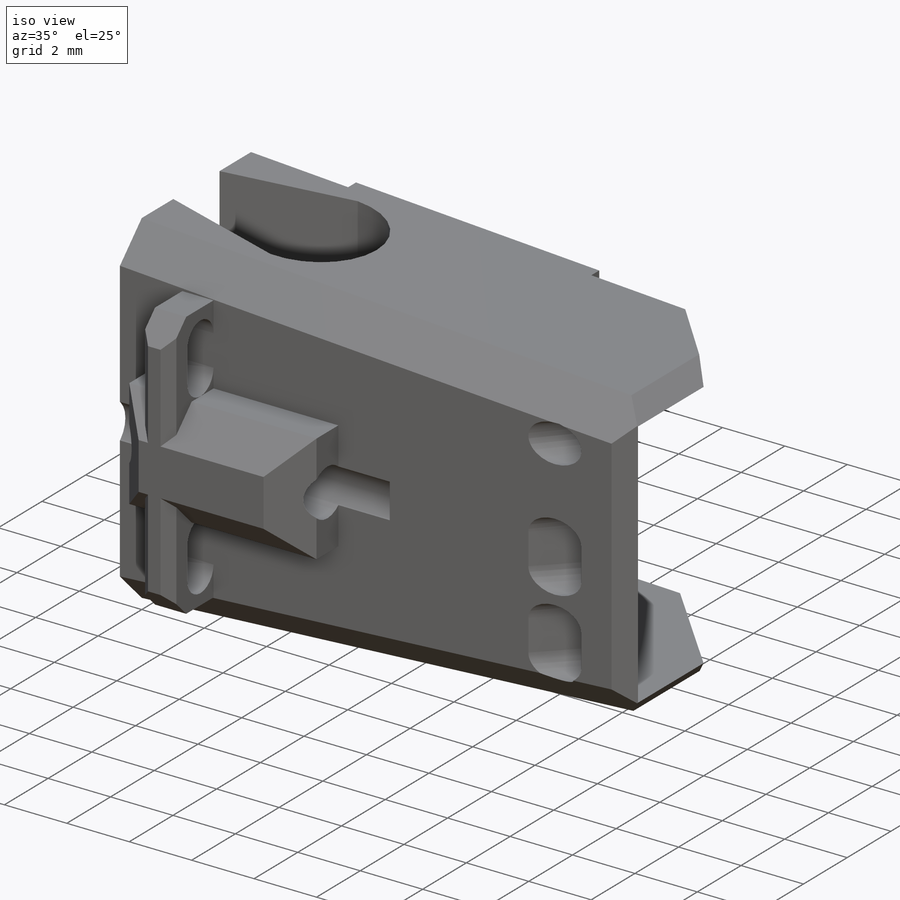
[diagram: iso view]
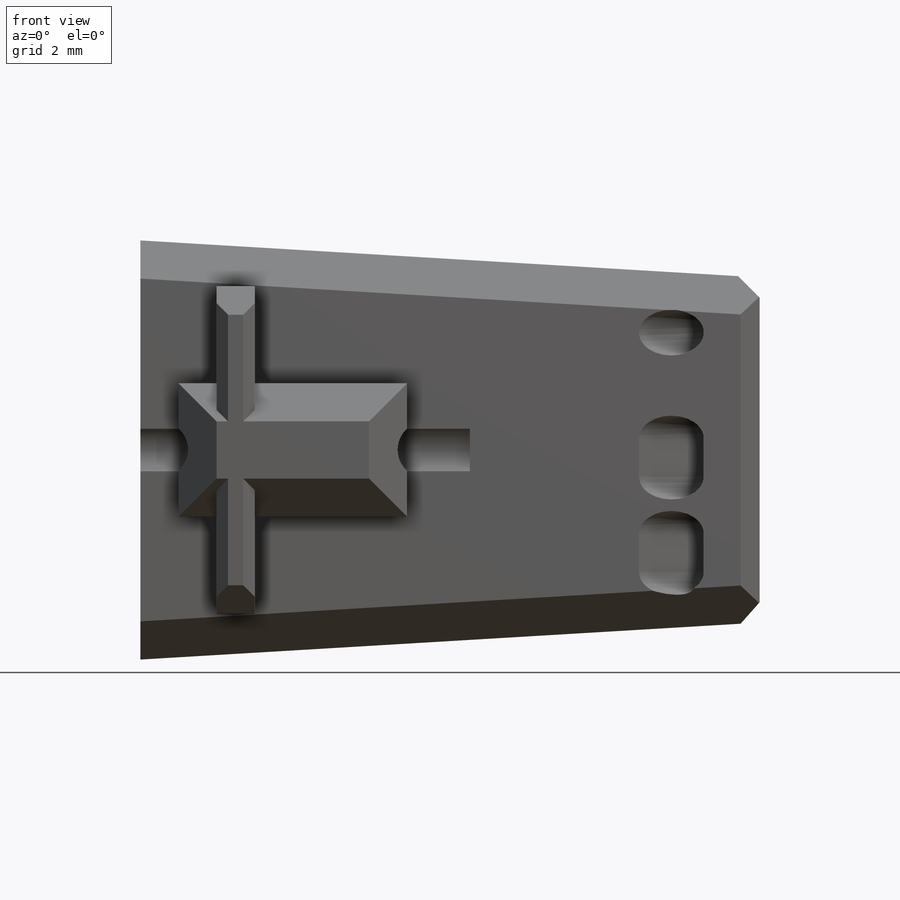
[diagram: front view]
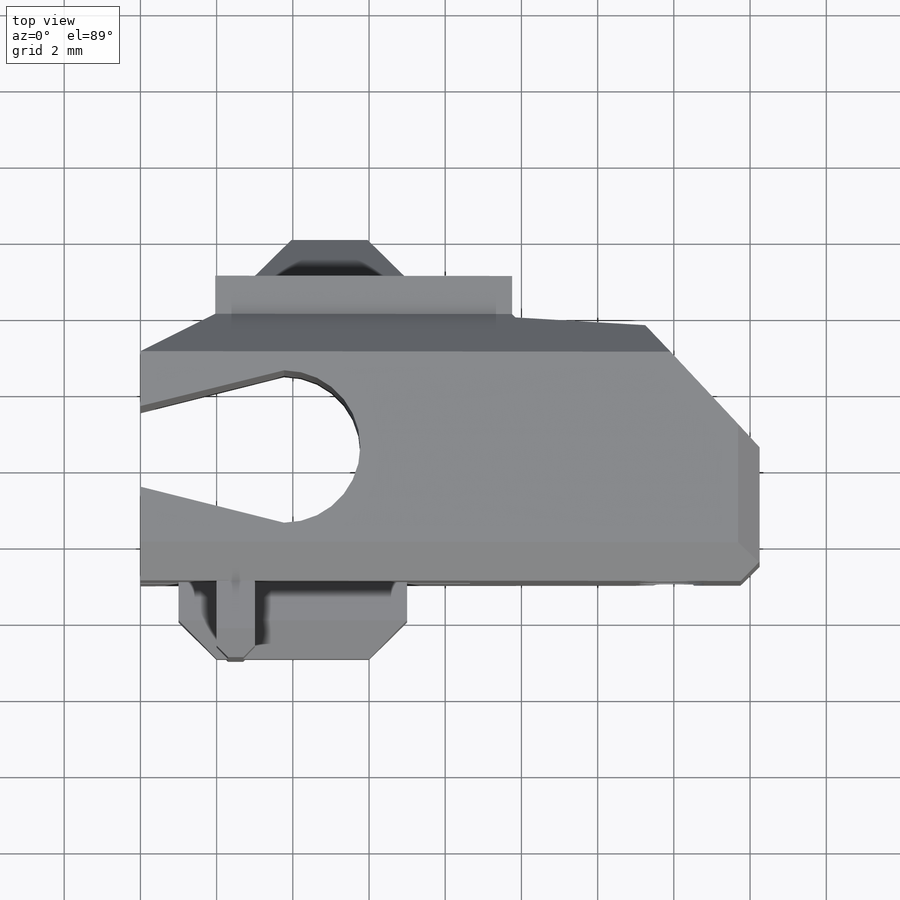
[diagram: top view]
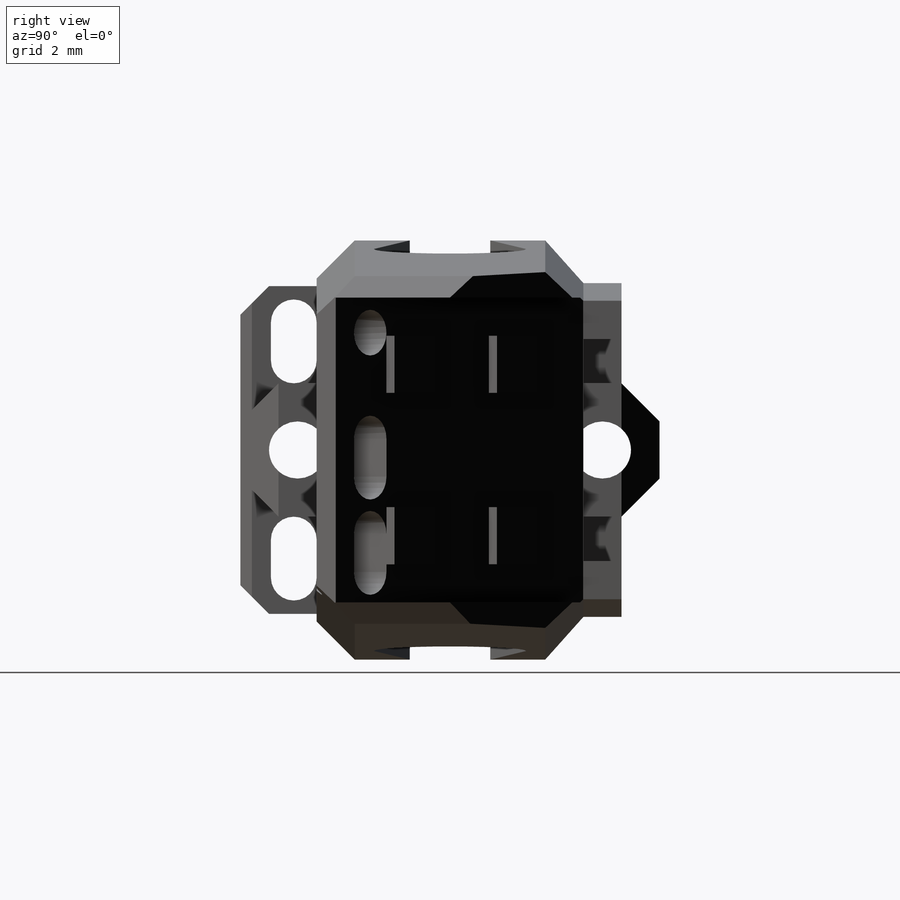
[diagram: right view]
SOLIDWORKS PART (.sldprt)
format: sldprt  version: not decoded by parser v0  size: 611,328 bytes
history: native  units: mm
features: sketch x14, cut_extrude x8, chamfer x7, extrude x6, plane x2, material x1 (+13 scaffold rows collapsed)
feature tree (51):
  scaffold x13  (default folders/planes/origin — collapsed)
  material  "Material <not specified>"
  sketch  "Sketch2"  dims[D1=9.0mm D2=11.0mm D3=16.75mm]
  extrude  "Boss-Extrude1"  Depth=7mm
  chamfer  "Chamfer1"  Distance=1mm Angle=45deg
  chamfer  "Chamfer7"  Distance=1mm Angle=45deg
  chamfer  "Chamfer14"  Distance=1mm Angle=63deg
  sketch  "Sketch13"  dims[D1=1.75mm D2=6.0mm D3=1.0mm]
  extrude  "Boss-Extrude4"  Depth=2mm
  sketch  "Sketch14"  dims[D1=1.5mm D2=1.5mm]
  cut_extrude  "Cut-Extrude9"  Depth=7.64728mm
  chamfer  "Chamfer15"  Distance=1mm Angle=45deg
  sketch  "Sketch15"  dims[D1=1.75mm D2=1.0mm D3=4.0mm D4=4.0mm]
  extrude  "Boss-Extrude6"  Depth=2mm
  sketch  "Sketch18"  dims[D1=1.5mm D2=1.5mm]
  cut_extrude  "Cut-Extrude10"  Depth=6mm
  chamfer  "Chamfer16"  Distance=1mm Angle=45deg
  plane  "Plane1"
  sketch  "Sketch19"  dims[D1=4.0mm D2=8.0mm]
  cut_extrude  "Cut-Extrude12"  [1 undecoded]
  sketch  "Sketch21"  dims[D1=3.0mm]
  cut_extrude  "Cut-Extrude14"  Depth=2mm
  sketch  "Sketch23"  dims[D1=1.5mm D2=2.0mm D3=1.0mm]
  extrude  "Boss-Extrude7"  Depth=0.3mm
  sketch  "Sketch30"  dims[D1=0.0mm D2=3.55mm D3=1.0mm D4=0.0mm]
  extrude  "Boss-Extrude12"  Depth=2mm
  chamfer  "Chamfer19"  Distance=0.3mm Angle=45deg
  chamfer  "Chamfer20"  Distance=0.75mm Angle=45deg
  sketch  "Sketch35"  dims[D1=1.0mm D2=0.6mm D3=0.0mm D4=0.6mm D5=0.6mm]
  cut_extrude  "Cut-Extrude32"  Depth=1.23mm
  plane  "Plane2"
  sketch  "Sketch36"  dims[D1=4.0mm D2=4.0mm D3=3.77mm D4=1.0mm D5=6.0mm]
  cut_extrude  "Cut-Extrude33"  [1 undecoded]
  sketch  "Sketch38"  dims[c1.D5=1.2mm c1.D1=1.0mm c1.D2=0.6mm c1.D3=1.0mm c1.D4=0.6mm c2.D5=1.0mm c2.D6=1.5mm c2.D7=0.8mm c2.D8=~0.920289mm c2.D9=1.0mm c3.D9=~179.971169deg c4.D9=0.6mm]
  cut_extrude  "Cut-Extrude34"  [1 undecoded]
  sketch  "Sketch39"  dims[D1=1.0mm D2=1.0mm]
  extrude  "Boss-Extrude13"  Depth=1mm
  sketch  "Sketch41"  dims[D1=0.5mm]
  cut_extrude  "Cut-Extrude35"  Depth=1mm
decode coverage: 32 of 35 modeling features carry decoded parameters
note: ~ marks probable driven/reference dimensions
note: 3 parameter values undecoded
summary: no parameter record found for 3 features
note: suppression state not decoded; provenance and decode notes live in map.json
